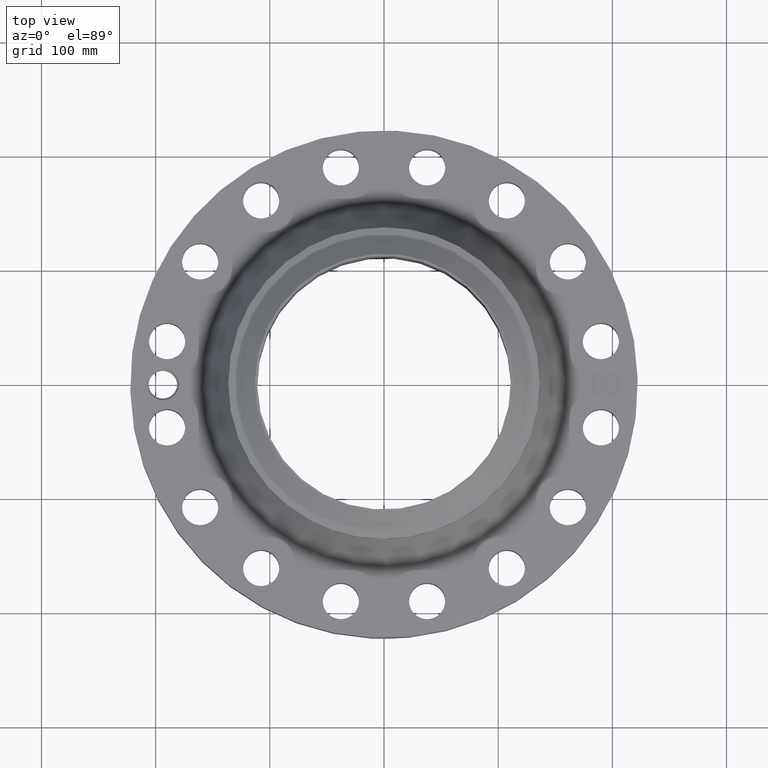
[diagram: clean part render]
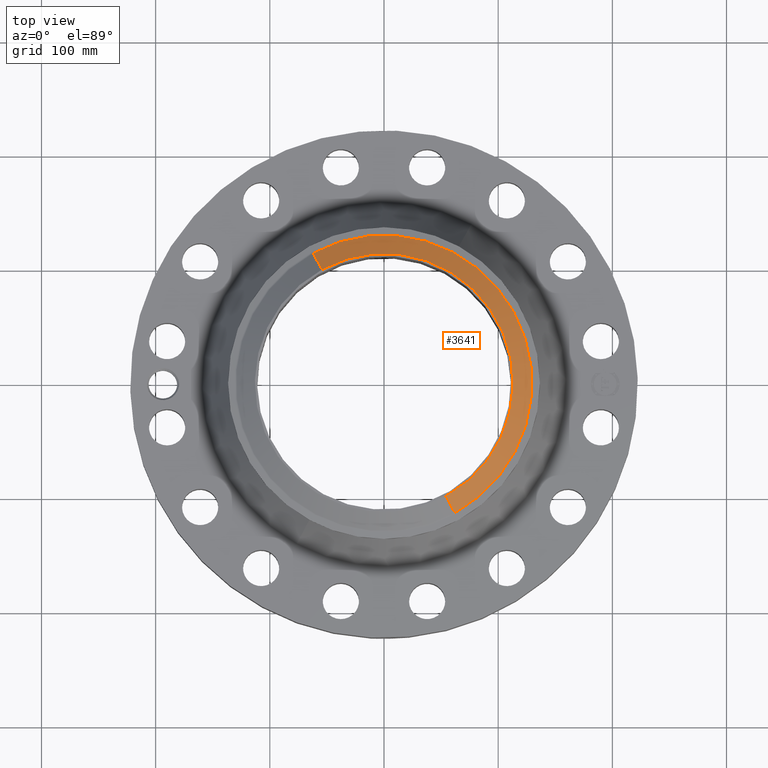
[diagram: same view with one face highlighted and labeled with its STEP entity id]
A machine part, top view. The second image highlights one B-rep face of the part: STEP entity #3641.
In plain terms, the highlighted conical surface has half-angle 52.5 deg.
Its self-contained STEP definition (entity closure, byte-faithful):
#2794=AXIS2_PLACEMENT_3D('Circle Axis2P3D',#2792,#2793,$) ;
#3602=AXIS2_PLACEMENT_3D('Cone Axis2P3D',#3599,#3600,#3601) ;
#3632=AXIS2_PLACEMENT_3D('Circle Axis2P3D',#3630,#3631,$) ;
#2792=CARTESIAN_POINT('Axis2P3D Location',(0.,0.,5.13000000002)) ;
#2796=CARTESIAN_POINT('Vertex',(2.13523677381,-3.90852469741,5.13000000002)) ;
#2798=CARTESIAN_POINT('Vertex',(-2.13523677381,3.90852469741,5.13000000002)) ;
#3599=CARTESIAN_POINT('Axis2P3D Location',(0.,0.,5.13000000002)) ;
#3604=CARTESIAN_POINT('Line Origine',(-2.29017807636,4.19214284931,4.88201437259)) ;
#3608=CARTESIAN_POINT('Vertex',(-2.44511937891,4.47576100122,4.63402874515)) ;
#3615=CARTESIAN_POINT('Vertex',(2.44511937891,-4.47576100122,4.63402874515)) ;
#3618=CARTESIAN_POINT('Line Origine',(2.29017807636,-4.19214284931,4.88201437259)) ;
#3630=CARTESIAN_POINT('Axis2P3D Location',(0.,0.,4.63402874515)) ;
#2793=DIRECTION('Axis2P3D Direction',(0.,0.,-0.0393700787402)) ;
#3600=DIRECTION('Axis2P3D Direction',(-0.,-0.,-0.0393700787402)) ;
#3601=DIRECTION('Axis2P3D XDirection',(-0.0188750212049,0.0345504945626,0.)) ;
#3605=DIRECTION('Vector Direction',(-0.014974561121,0.02741075027,-0.023966985394)) ;
#3619=DIRECTION('Vector Direction',(0.014974561121,-0.02741075027,-0.023966985394)) ;
#3631=DIRECTION('Axis2P3D Direction',(0.,0.,-0.0393700787402)) ;
#3606=VECTOR('Line Direction',#3605,0.0393700787402) ;
#3620=VECTOR('Line Direction',#3619,0.0393700787402) ;
#3636=ORIENTED_EDGE('',*,*,#2800,.F.) ;
#3637=ORIENTED_EDGE('',*,*,#3622,.T.) ;
#3638=ORIENTED_EDGE('',*,*,#3634,.T.) ;
#3639=ORIENTED_EDGE('',*,*,#3610,.F.) ;
#3641=ADVANCED_FACE('PartBody',(#3640),#3603,.T.) ;
#2795=CIRCLE('generated circle',#2794,4.4537401575) ;
#3633=CIRCLE('generated circle',#3632,5.10010248105) ;
#3603=CONICAL_SURFACE('Cone',#3602,4.4537401575,0.916297857297) ;
#2800=EDGE_CURVE('',#2797,#2799,#2795,.F.) ;
#3610=EDGE_CURVE('',#2799,#3609,#3607,.T.) ;
#3622=EDGE_CURVE('',#2797,#3616,#3621,.T.) ;
#3634=EDGE_CURVE('',#3616,#3609,#3633,.F.) ;
#3635=EDGE_LOOP('',(#3636,#3637,#3638,#3639)) ;
#3640=FACE_OUTER_BOUND('',#3635,.T.) ;
#3607=LINE('Line',#3604,#3606) ;
#3621=LINE('Line',#3618,#3620) ;
#2797=VERTEX_POINT('',#2796) ;
#2799=VERTEX_POINT('',#2798) ;
#3609=VERTEX_POINT('',#3608) ;
#3616=VERTEX_POINT('',#3615) ;